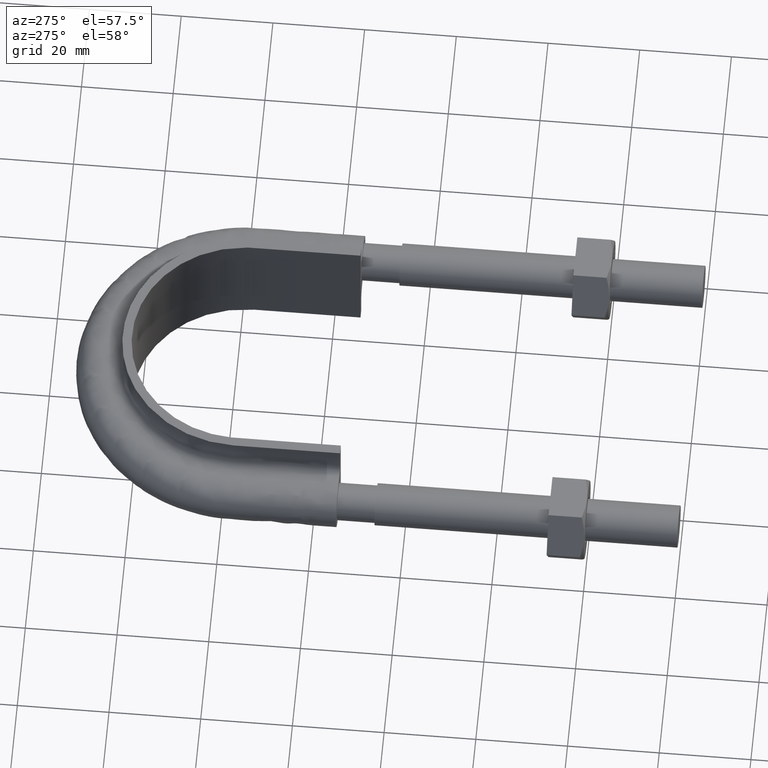
[diagram: clean part render]
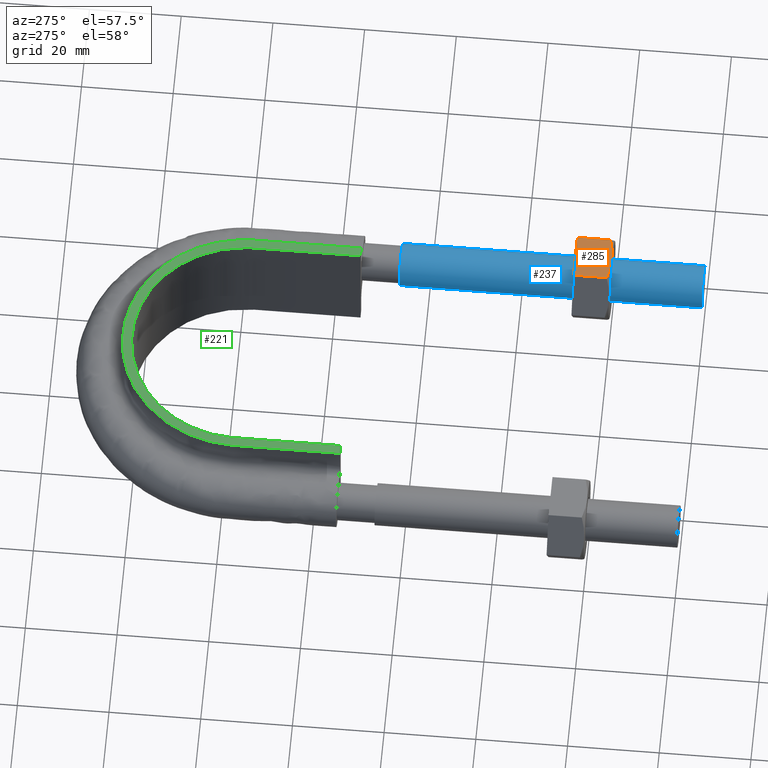
[diagram: same view with three faces highlighted in distinct colors, each labeled with its STEP entity id]
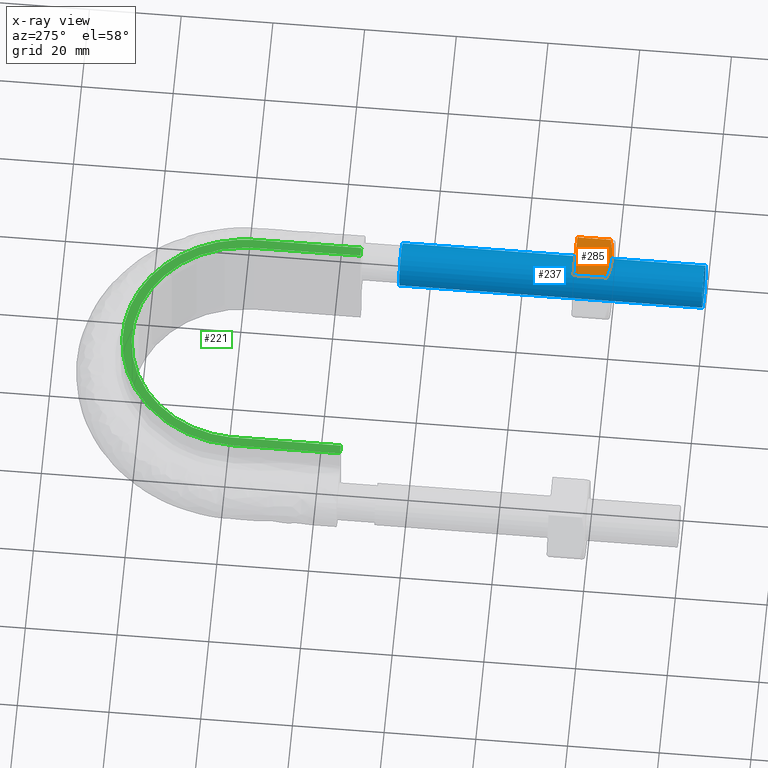
[diagram: x-ray of the same camera — body ghosted, the three highlighted faces saturated]
A machine part, auxiliary view with three faces highlighted in distinct colors.
The next image is the same camera in x-ray (body ghosted, the three faces saturated) — at least one of them is partly hidden behind the body in this view.
Their STEP definitions:

[orange] entity #285 — the highlighted planar face has unit normal (-0, 0, -1).
#285 = ADVANCED_FACE( '', ( #446 ), #447, .F. );
#446 = FACE_OUTER_BOUND( '', #1443, .T. );
#447 = PLANE( '', #1444 );
#1443 = EDGE_LOOP( '', ( #1933, #1934, #1935, #1936, #1937 ) );
#1444 = AXIS2_PLACEMENT_3D( '', #1938, #1939, #1940 );
#1933 = ORIENTED_EDGE( '', *, *, #2139, .F. );
#1934 = ORIENTED_EDGE( '', *, *, #2110, .F. );
#1935 = ORIENTED_EDGE( '', *, *, #2134, .F. );
#1936 = ORIENTED_EDGE( '', *, *, #2132, .F. );
#1937 = ORIENTED_EDGE( '', *, *, #2146, .F. );
#1938 = CARTESIAN_POINT( '', ( 26.0925227118882, 28.0000000000000, 8.50000000000001 ) );
#1939 = DIRECTION( '', ( -1.11022302462516E-016, 3.06151588455594E-016, -1.00000000000000 ) );
#1940 = DIRECTION( '', ( -1.00000000000000, 0.000000000000000, 1.11022302462516E-016 ) );
#2110 = EDGE_CURVE( '', #2331, #2327, #2333, .T. );
#2132 = EDGE_CURVE( '', #2372, #2356, #2374, .T. );
#2134 = EDGE_CURVE( '', #2356, #2331, #2376, .T. );
#2139 = EDGE_CURVE( '', #2327, #2383, #2384, .T. );
#2146 = EDGE_CURVE( '', #2383, #2372, #2393, .F. );
#2327 = VERTEX_POINT( '', #2905 );
#2331 = VERTEX_POINT( '', #2914 );
#2333 = B_SPLINE_CURVE_WITH_KNOTS( '', 3, ( #2916, #2917, #2918, #2919, #2920, #2921 ), .UNSPECIFIED., .F., .F., ( 4, 2, 4 ), ( 1.43048962453820E-017, 0.00246745482903607, 0.00493490965807212 ), .UNSPECIFIED. );
#2356 = VERTEX_POINT( '', #2963 );
#2372 = VERTEX_POINT( '', #2983 );
#2374 = LINE( '', #2985, #2986 );
#2376 = LINE( '', #2989, #2990 );
#2383 = VERTEX_POINT( '', #3002 );
#2384 = B_SPLINE_CURVE_WITH_KNOTS( '', 3, ( #3003, #3004, #3005, #3006, #3007, #3008 ), .UNSPECIFIED., .F., .F., ( 4, 2, 4 ), ( 0.000000000000000, 0.00246745482903606, 0.00493490965807211 ), .UNSPECIFIED. );
#2393 = LINE( '', #3024, #3025 );
#2905 = CARTESIAN_POINT( '', ( 31.0000000000000, 20.0000000000000, 8.50000000000001 ) );
#2914 = CARTESIAN_POINT( '', ( 35.8774993593029, 20.7505553499465, 8.50000000000001 ) );
#2916 = CARTESIAN_POINT( '', ( 35.8774993593029, 20.7505553499465, 8.50000000000001 ) );
#2917 = CARTESIAN_POINT( '', ( 35.0805717066773, 20.5215585493657, 8.50000000000001 ) );
#2918 = CARTESIAN_POINT( '', ( 34.2774431756629, 20.3328582843707, 8.50000000000001 ) );
#2919 = CARTESIAN_POINT( '', ( 32.6533062476857, 20.0716504305290, 8.50000000000001 ) );
#2920 = CARTESIAN_POINT( '', ( 31.8321659501907, 20.0000000000000, 8.50000000000001 ) );
#2921 = CARTESIAN_POINT( '', ( 31.0000000000000, 20.0000000000000, 8.50000000000001 ) );
#2963 = CARTESIAN_POINT( '', ( 35.8774993593029, 28.0000000000000, 8.50000000000001 ) );
#2983 = CARTESIAN_POINT( '', ( 26.1225006406971, 28.0000000000000, 8.50000000000001 ) );
#2985 = CARTESIAN_POINT( '', ( 26.1000000000000, 28.0000000000000, 8.50000000000001 ) );
#2986 = VECTOR( '', #3251, 1000.00000000000 );
#2989 = CARTESIAN_POINT( '', ( 35.8774993593029, 28.0000000000000, 8.50000000000001 ) );
#2990 = VECTOR( '', #3253, 1000.00000000000 );
#3002 = CARTESIAN_POINT( '', ( 26.1225006406971, 20.7505553499465, 8.50000000000001 ) );
#3003 = CARTESIAN_POINT( '', ( 31.0000000000000, 20.0000000000000, 8.50000000000001 ) );
#3004 = CARTESIAN_POINT( '', ( 30.1678340498093, 20.0000000000000, 8.50000000000001 ) );
#3005 = CARTESIAN_POINT( '', ( 29.3466937523144, 20.0716504305290, 8.50000000000001 ) );
#3006 = CARTESIAN_POINT( '', ( 27.7225568243371, 20.3328582843707, 8.50000000000001 ) );
#3007 = CARTESIAN_POINT( '', ( 26.9194282933227, 20.5215585493657, 8.50000000000001 ) );
#3008 = CARTESIAN_POINT( '', ( 26.1225006406971, 20.7505553499465, 8.50000000000001 ) );
#3024 = CARTESIAN_POINT( '', ( 26.1225006406971, 28.0000000000000, 8.50000000000001 ) );
#3025 = VECTOR( '', #3274, 1000.00000000000 );
#3251 = DIRECTION( '', ( 1.00000000000000, -2.44921270764475E-016, -1.11022302462516E-016 ) );
#3253 = DIRECTION( '', ( -2.44921270764475E-016, -1.00000000000000, -3.06151588455594E-016 ) );
#3274 = DIRECTION( '', ( -2.44921270764475E-016, -1.00000000000000, -3.06151588455594E-016 ) );

[blue] entity #237 — the highlighted cylindrical surface (bore or boss wall) has radius 4.6 mm, axis along (-0, -1, -0).
#237 = ADVANCED_FACE( '', ( #338, #339 ), #340, .T. );
#338 = FACE_OUTER_BOUND( '', #1335, .T. );
#339 = FACE_OUTER_BOUND( '', #1336, .T. );
#340 = CYLINDRICAL_SURFACE( '', #1337, 4.60000000000000 );
#1335 = EDGE_LOOP( '', ( #1598 ) );
#1336 = EDGE_LOOP( '', ( #1599 ) );
#1337 = AXIS2_PLACEMENT_3D( '', #1600, #1601, #1602 );
#1598 = ORIENTED_EDGE( '', *, *, #2048, .F. );
#1599 = ORIENTED_EDGE( '', *, *, #2049, .T. );
#1600 = CARTESIAN_POINT( '', ( 31.0000000000000, 66.0000000000000, 2.04050033705654E-014 ) );
#1601 = DIRECTION( '', ( -2.44921270764475E-016, -1.00000000000000, -3.06151588455594E-016 ) );
#1602 = DIRECTION( '', ( 1.00000000000000, -2.44921270764475E-016, -3.74915180455534E-032 ) );
#2048 = EDGE_CURVE( '', #2227, #2227, #2228, .T. );
#2049 = EDGE_CURVE( '', #2229, #2229, #2230, .T. );
#2227 = VERTEX_POINT( '', #2717 );
#2228 = CIRCLE( '', #2718, 4.60000000000000 );
#2229 = VERTEX_POINT( '', #2719 );
#2230 = CIRCLE( '', #2720, 4.60000000000000 );
#2717 = CARTESIAN_POINT( '', ( 35.6000000000000, -8.71919723921533E-015, 1.98998532496135E-016 ) );
#2718 = AXIS2_PLACEMENT_3D( '', #3108, #3109, #3110 );
#2719 = CARTESIAN_POINT( '', ( 35.6000000000000, 66.0000000000000, 2.04050033705654E-014 ) );
#2720 = AXIS2_PLACEMENT_3D( '', #3111, #3112, #3113 );
#3108 = CARTESIAN_POINT( '', ( 31.0000000000000, -7.59255939369874E-015, 1.98998532496135E-016 ) );
#3109 = DIRECTION( '', ( -2.44921270764475E-016, -1.00000000000000, -3.06151588455594E-016 ) );
#3110 = DIRECTION( '', ( 1.00000000000000, -2.44921270764475E-016, -3.74915180455534E-032 ) );
#3111 = CARTESIAN_POINT( '', ( 31.0000000000000, 66.0000000000000, 2.04050033705654E-014 ) );
#3112 = DIRECTION( '', ( -2.44921270764475E-016, -1.00000000000000, -3.06151588455594E-016 ) );
#3113 = DIRECTION( '', ( 1.00000000000000, -2.44921270764475E-016, -3.74915180455534E-032 ) );

[green] entity #221 — the highlighted planar face has unit normal (0, 0, 1).
#221 = ADVANCED_FACE( '', ( #301 ), #302, .T. );
#301 = FACE_OUTER_BOUND( '', #473, .T. );
#302 = PLANE( '', #474 );
#473 = EDGE_LOOP( '', ( #1480, #1481, #1482, #1483 ) );
#474 = AXIS2_PLACEMENT_3D( '', #1484, #1485, #1486 );
#1480 = ORIENTED_EDGE( '', *, *, #2004, .T. );
#1481 = ORIENTED_EDGE( '', *, *, #2011, .F. );
#1482 = ORIENTED_EDGE( '', *, *, #2012, .T. );
#1483 = ORIENTED_EDGE( '', *, *, #2013, .T. );
#1484 = CARTESIAN_POINT( '', ( 40.0000000000000, 144.300000000000, 12.5000000000000 ) );
#1485 = DIRECTION( '', ( 0.000000000000000, 0.000000000000000, 1.00000000000000 ) );
#1486 = DIRECTION( '', ( 1.00000000000000, 0.000000000000000, 0.000000000000000 ) );
#2004 = EDGE_CURVE( '', #2158, #2155, #2159, .F. );
#2011 = EDGE_CURVE( '', #2170, #2155, #2171, .T. );
#2012 = EDGE_CURVE( '', #2170, #2172, #2173, .F. );
#2013 = EDGE_CURVE( '', #2172, #2158, #2174, .F. );
#2155 = VERTEX_POINT( '', #2405 );
#2158 = VERTEX_POINT( '', #2409 );
#2159 = LINE( '', #2410, #2411 );
#2170 = VERTEX_POINT( '', #2495 );
#2171 = B_SPLINE_CURVE_WITH_KNOTS( '', 3, ( #2496, #2497, #2498, #2499, #2500, #2501, #2502, #2503, #2504, #2505, #2506, #2507, #2508, #2509, #2510, #2511, #2512, #2513, #2514, #2515, #2516, #2517, #2518, #2519, #2520, #2521, #2522, #2523, #2524, #2525, #2526, #2527, #2528, #2529, #2530, #2531, #2532, #2533, #2534, #2535, #2536, #2537, #2538, #2539, #2540, #2541, #2542, #2543, #2544, #2545, #2546, #2547, #2548, #2549, #2550, #2551, #2552, #2553, #2554, #2555, #2556, #2557, #2558, #2559, #2560, #2561, #2562 ), .UNSPECIFIED., .F., .F., ( 4, 1, 2, 2, 2, 2, 2, 2, 2, 2, 2, 2, 2, 2, 2, 2, 2, 2, 2, 2, 2, 2, 2, 2, 2, 2, 2, 2, 2, 2, 2, 2, 1, 1, 4 ), ( 0.000000000000000, 0.0154145326467002, 0.0231217989700503, 0.0250486155508878, 0.0269754321317254, 0.0308290652934005, 0.0346826984550756, 0.0366095150359132, 0.0385363316167507, 0.0423899647784258, 0.0443167813592634, 0.0462435979401010, 0.0500972311017761, 0.0520240476826136, 0.0539508642634512, 0.0578044974251263, 0.0597313140059639, 0.0616581305868014, 0.0655117637484765, 0.0674385803293141, 0.0693653969101517, 0.0732190300718268, 0.0751458466526643, 0.0770726632335019, 0.0809262963951769, 0.0828531129760145, 0.0847799295568520, 0.0924871958802022, 0.0944140124610398, 0.0963408290418773, 0.100194462203552, 0.102121278784390, 0.104048095365227, 0.107901728526903, 0.123316261173603 ), .UNSPECIFIED. );
#2172 = VERTEX_POINT( '', #2563 );
#2173 = LINE( '', #2564, #2565 );
#2174 = B_SPLINE_CURVE_WITH_KNOTS( '', 3, ( #2566, #2567, #2568, #2569, #2570, #2571, #2572, #2573, #2574, #2575, #2576, #2577, #2578, #2579, #2580, #2581, #2582 ), .UNSPECIFIED., .F., .F., ( 4, 3, 1, 1, 1, 1, 1, 1, 1, 3, 4 ), ( 0.145756457564577, 1.00000000000000, 1.50000000000000, 2.00000000000000, 3.00000000000000, 4.00000000000000, 5.00000000000000, 6.00000000000000, 6.50000000000000, 7.00000000000000, 7.85424354243542 ), .UNSPECIFIED. );
#2405 = CARTESIAN_POINT( '', ( -24.5500000000000, 74.3000000000000, 12.5000000000000 ) );
#2409 = CARTESIAN_POINT( '', ( -26.5500000000000, 74.3000000000000, 12.5000000000000 ) );
#2410 = CARTESIAN_POINT( '', ( 40.0000000000000, 74.3000000000000, 12.5000000000000 ) );
#2411 = VECTOR( '', #3052, 1000.00000000000 );
#2495 = CARTESIAN_POINT( '', ( 24.5500000000000, 74.3000000000000, 12.5000000000000 ) );
#2496 = CARTESIAN_POINT( '', ( 24.5500000000000, 74.3000000000000, 12.5000000000000 ) );
#2497 = CARTESIAN_POINT( '', ( 24.5500000000000, 79.4384221999800, 12.5000000000000 ) );
#2498 = CARTESIAN_POINT( '', ( 24.5500000000000, 87.1460554999499, 12.5000000000000 ) );
#2499 = CARTESIAN_POINT( '', ( 24.5500000000000, 94.8536887999199, 12.5000000000000 ) );
#2500 = CARTESIAN_POINT( '', ( 24.5500000000000, 98.0652026749074, 12.5000000000000 ) );
#2501 = CARTESIAN_POINT( '', ( 24.5252751330927, 98.7072641688934, 12.5000000000000 ) );
#2502 = CARTESIAN_POINT( '', ( 24.4234462537604, 99.9908760077757, 12.5000000000000 ) );
#2503 = CARTESIAN_POINT( '', ( 24.3467657946690, 100.634220258934, 12.5000000000000 ) );
#2504 = CARTESIAN_POINT( '', ( 24.0418819320213, 102.551204048510, 12.5000000000000 ) );
#2505 = CARTESIAN_POINT( '', ( 23.7423938741596, 103.798075614365, 12.5000000000000 ) );
#2506 = CARTESIAN_POINT( '', ( 22.9567434107526, 106.231455730255, 12.5000000000000 ) );
#2507 = CARTESIAN_POINT( '', ( 22.4705596365819, 107.417957370532, 12.5000000000000 ) );
#2508 = CARTESIAN_POINT( '', ( 21.5925627875954, 109.149619348676, 12.5000000000000 ) );
#2509 = CARTESIAN_POINT( '', ( 21.2766071075014, 109.714973605172, 12.5000000000000 ) );
#2510 = CARTESIAN_POINT( '', ( 20.6053719022684, 110.810534866425, 12.5000000000000 ) );
#2511 = CARTESIAN_POINT( '', ( 20.2492833691971, 111.342698259692, 12.5000000000000 ) );
#2512 = CARTESIAN_POINT( '', ( 19.1215068537777, 112.893787664672, 12.5000000000000 ) );
#2513 = CARTESIAN_POINT( '', ( 18.2907926568853, 113.867682679625, 12.5000000000000 ) );
#2514 = CARTESIAN_POINT( '', ( 16.9250762587396, 115.237248160513, 12.5000000000000 ) );
#2515 = CARTESIAN_POINT( '', ( 16.4483141734127, 115.679458076329, 12.5000000000000 ) );
#2516 = CARTESIAN_POINT( '', ( 15.4703087185621, 116.517984206518, 12.5000000000000 ) );
#2517 = CARTESIAN_POINT( '', ( 14.9674075928235, 116.916154886691, 12.5000000000000 ) );
#2518 = CARTESIAN_POINT( '', ( 13.4174319314453, 118.048031587190, 12.5000000000000 ) );
#2519 = CARTESIAN_POINT( '', ( 12.3291014903938, 118.719127124092, 12.5000000000000 ) );
#2520 = CARTESIAN_POINT( '', ( 10.6113550739500, 119.596392806505, 12.5000000000000 ) );
#2521 = CARTESIAN_POINT( '', ( 10.0221200459754, 119.868384793433, 12.5000000000000 ) );
#2522 = CARTESIAN_POINT( '', ( 8.82789979738735, 120.363314078471, 12.5000000000000 ) );
#2523 = CARTESIAN_POINT( '', ( 8.22453257139379, 120.585861709962, 12.5000000000000 ) );
#2524 = CARTESIAN_POINT( '', ( 6.39627757875444, 121.181214530966, 12.5000000000000 ) );
#2525 = CARTESIAN_POINT( '', ( 5.15338195845855, 121.482308901390, 12.5000000000000 ) );
#2526 = CARTESIAN_POINT( '', ( 3.25266287101866, 121.789095428283, 12.5000000000000 ) );
#2527 = CARTESIAN_POINT( '', ( 2.61299113566870, 121.867071354940, 12.5000000000000 ) );
#2528 = CARTESIAN_POINT( '', ( 1.32093241036658, 121.972388560719, 12.5000000000000 ) );
#2529 = CARTESIAN_POINT( '', ( 0.676406080425299, 121.999046675169, 12.5000000000000 ) );
#2530 = CARTESIAN_POINT( '', ( -1.24870371014262, 122.001831348721, 12.5000000000000 ) );
#2531 = CARTESIAN_POINT( '', ( -2.52265182528364, 121.901467818298, 12.5000000000000 ) );
#2532 = CARTESIAN_POINT( '', ( -4.41989760294836, 121.603117496314, 12.5000000000000 ) );
#2533 = CARTESIAN_POINT( '', ( -5.05001948103506, 121.478882110562, 12.5000000000000 ) );
#2534 = CARTESIAN_POINT( '', ( -6.30559148152638, 121.179922232146, 12.5000000000000 ) );
#2535 = CARTESIAN_POINT( '', ( -6.93138081059463, 121.004801946249, 12.5000000000000 ) );
#2536 = CARTESIAN_POINT( '', ( -8.76889753233618, 120.412561446254, 12.5000000000000 ) );
#2537 = CARTESIAN_POINT( '', ( -9.95225725658806, 119.926780134564, 12.5000000000000 ) );
#2538 = CARTESIAN_POINT( '', ( -11.6646188489645, 119.061238084006, 12.5000000000000 ) );
#2539 = CARTESIAN_POINT( '', ( -12.2248697137767, 118.749715852754, 12.5000000000000 ) );
#2540 = CARTESIAN_POINT( '', ( -13.3236776153919, 118.079298526967, 12.5000000000000 ) );
#2541 = CARTESIAN_POINT( '', ( -13.8646027205754, 117.718764312176, 12.5000000000000 ) );
#2542 = CARTESIAN_POINT( '', ( -15.4323331862347, 116.581610342879, 12.5000000000000 ) );
#2543 = CARTESIAN_POINT( '', ( -16.4066904175183, 115.749931319893, 12.5000000000000 ) );
#2544 = CARTESIAN_POINT( '', ( -17.7664797273133, 114.396670964759, 12.5000000000000 ) );
#2545 = CARTESIAN_POINT( '', ( -18.2026751411940, 113.927846292992, 12.5000000000000 ) );
#2546 = CARTESIAN_POINT( '', ( -19.0403725195657, 112.954141191624, 12.5000000000000 ) );
#2547 = CARTESIAN_POINT( '', ( -19.4425779981796, 112.448302440163, 12.5000000000000 ) );
#2548 = CARTESIAN_POINT( '', ( -21.3557319354795, 109.835383435035, 12.5000000000000 ) );
#2549 = CARTESIAN_POINT( '', ( -22.5176023500940, 107.559503335252, 12.5000000000000 ) );
#2550 = CARTESIAN_POINT( '', ( -23.5216696114527, 104.489036138194, 12.5000000000000 ) );
#2551 = CARTESIAN_POINT( '', ( -23.6990122608683, 103.864746296536, 12.5000000000000 ) );
#2552 = CARTESIAN_POINT( '', ( -24.0024245935730, 102.614723986779, 12.5000000000000 ) );
#2553 = CARTESIAN_POINT( '', ( -24.1294131227665, 101.986428305825, 12.5000000000000 ) );
#2554 = CARTESIAN_POINT( '', ( -24.4371992964721, 100.091817044920, 12.5000000000000 ) );
#2555 = CARTESIAN_POINT( '', ( -24.5457173567177, 98.8158968179810, 12.5000000000000 ) );
#2556 = CARTESIAN_POINT( '', ( -24.5519571685428, 96.8812155098235, 12.5000000000000 ) );
#2557 = CARTESIAN_POINT( '', ( -24.5500000000000, 96.2357852822297, 12.5000000000000 ) );
#2558 = CARTESIAN_POINT( '', ( -24.5500000000000, 94.9454449715104, 12.5000000000000 ) );
#2559 = CARTESIAN_POINT( '', ( -24.5500000000000, 93.0099345054312, 12.5000000000000 ) );
#2560 = CARTESIAN_POINT( '', ( -24.5500000000000, 85.9130627964745, 12.5000000000000 ) );
#2561 = CARTESIAN_POINT( '', ( -24.5500000000000, 79.4613612428776, 12.5000000000000 ) );
#2562 = CARTESIAN_POINT( '', ( -24.5500000000000, 74.3000000000000, 12.5000000000000 ) );
#2563 = CARTESIAN_POINT( '', ( 26.5500000000000, 74.3000000000000, 12.5000000000000 ) );
#2564 = CARTESIAN_POINT( '', ( 40.0000000000000, 74.3000000000000, 12.5000000000000 ) );
#2565 = VECTOR( '', #3055, 1000.00000000000 );
#2566 = CARTESIAN_POINT( '', ( -26.5500000000000, 74.3000000000000, 12.5000000000000 ) );
#2567 = CARTESIAN_POINT( '', ( -26.5500000000000, 82.0166666666667, 12.5000000000000 ) );
#2568 = CARTESIAN_POINT( '', ( -26.5500000000000, 89.7333333333334, 12.5000000000000 ) );
#2569 = CARTESIAN_POINT( '', ( -26.5500000000000, 97.4500000000000, 12.5000000000000 ) );
#2570 = CARTESIAN_POINT( '', ( -26.5500000000000, 99.7566352991258, 12.5000000000000 ) );
#2571 = CARTESIAN_POINT( '', ( -25.9278217826459, 104.401541095585, 12.5000000000000 ) );
#2572 = CARTESIAN_POINT( '', ( -22.3733615438456, 113.038744740351, 12.5000000000000 ) );
#2573 = CARTESIAN_POINT( '', ( -13.8952542493119, 121.518591858921, 12.5000000000000 ) );
#2574 = CARTESIAN_POINT( '', ( 2.27096309690985E-014, 125.240704070539, 12.5000000000000 ) );
#2575 = CARTESIAN_POINT( '', ( 13.8952542493119, 121.518591858921, 12.5000000000000 ) );
#2576 = CARTESIAN_POINT( '', ( 22.3733615438457, 113.038744740351, 12.5000000000000 ) );
#2577 = CARTESIAN_POINT( '', ( 25.9278217826460, 104.401541095585, 12.5000000000000 ) );
#2578 = CARTESIAN_POINT( '', ( 26.5500000000000, 99.7566352991258, 12.5000000000000 ) );
#2579 = CARTESIAN_POINT( '', ( 26.5500000000000, 97.4500000000000, 12.5000000000000 ) );
#2580 = CARTESIAN_POINT( '', ( 26.5500000000000, 89.7333333333333, 12.5000000000000 ) );
#2581 = CARTESIAN_POINT( '', ( 26.5500000000000, 82.0166666666666, 12.5000000000000 ) );
#2582 = CARTESIAN_POINT( '', ( 26.5500000000000, 74.3000000000000, 12.5000000000000 ) );
#3052 = DIRECTION( '', ( -1.00000000000000, 1.83649404852125E-048, 0.000000000000000 ) );
#3055 = DIRECTION( '', ( -1.00000000000000, 1.83649404852125E-048, 0.000000000000000 ) );